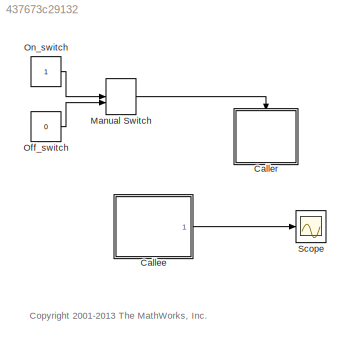
MODEL slx_437673c29132
KIND model
CONFIG AbsTol = auto
CONFIG EnableMultiTasking = on
CONFIG FixedStep = auto
CONFIG MaxStep = auto
CONFIG MinStep = auto
CONFIG RelTol = 1e-3
CONFIG SampleTimeConstraint = Unconstrained
CONFIG Solver = ode45
CONFIG SolverName = ode45
CONFIG StartTime = 0.0
CONFIG StopTime = inf
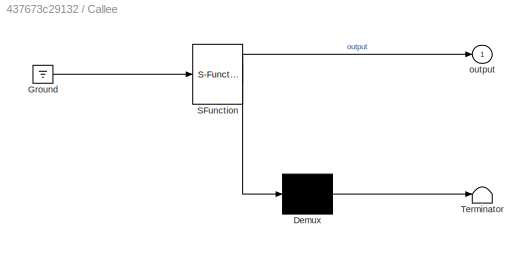
BLOCK [SubSystem] Callee
  ErrorFcn = Stateflow.Translate.translate
  PermitHierarchicalResolution = ExplicitOnly
  Ports = [0, 1]
  RequestExecContextInheritance = off
  SFBlockType = Chart
  TreatAsAtomicUnit = on
  Variant = off
BLOCK [Demux] Callee/ Demux 
  Outputs = 1
  Ports = [1, 1]
BLOCK [Ground] Callee/ Ground 
BLOCK [S-Function] Callee/ SFunction 
  EnableBusSupport = off
  FunctionName = sf_sfun
  PortCounts = [1 2]
  Ports = [1, 2]
  SFcnIsStateOwnerBlock = off
  SFunctionDeploymentMode = off
  Tag = Stateflow S-Function sf_gfexport 2
BLOCK [Terminator] Callee/ Terminator 
BLOCK [Outport] Callee/output
  IconDisplay = Port number
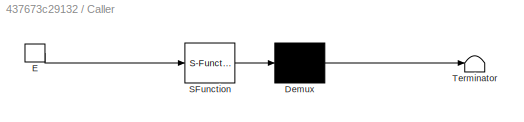
BLOCK [SubSystem] Caller
  ErrorFcn = Stateflow.Translate.translate
  PermitHierarchicalResolution = ExplicitOnly
  Ports = [0, 0, 0, 1]
  RequestExecContextInheritance = off
  SFBlockType = Chart
  TreatAsAtomicUnit = on
  Variant = off
BLOCK [Demux] Caller/ Demux 
  Outputs = 1
  Ports = [1, 1]
BLOCK [S-Function] Caller/ SFunction 
  EnableBusSupport = off
  FunctionName = sf_sfun
  PortCounts = [1 1]
  Ports = [1, 1]
  SFcnIsStateOwnerBlock = off
  SFunctionDeploymentMode = off
  Tag = Stateflow S-Function sf_gfexport 1
BLOCK [Terminator] Caller/ Terminator 
BLOCK [TriggerPort] Caller/E
  Ports = [0, 1]
  ShowOutputPort = on
  TriggerType = either
  VariantControl = Variant
BLOCK [ManualSwitch] Manual Switch
  CurrentSetting = 0
BLOCK [Constant] Off_switch
  Value = 0
BLOCK [Constant] On_switch
BLOCK [Scope] Scope
  NumInputPorts = 1
  Ports = [1]
  ScopeSpecificationString = Simulink.scopes.TimeScopeBlockCfg('CurrentConfiguration', extmgr.ConfigurationSet(extmgr.Configuration('Core','General UI',true),extmgr.Configuration('Core','Source UI',true),extmgr.Configuration('Sources','WiredSimulink',true,'DataLoggingSaveFormat','StructureWithTime'),extmgr.Configuration('Visuals','Time Domain',true,'SerializedDisplays',{struct('MinYLimReal','-1','MaxYLimReal','1.3','YLabelRea...<+1706ch>
ANNOTATION (root): <copyright redacted>
LINE Callee:1 -> Scope:1
LINE Manual Switch:1 -> Caller:trigger
LINE Off_switch:1 -> Manual Switch:2
LINE On_switch:1 -> Manual Switch:1
CHART Caller states=0 transitions=3
CHART Callee states=5 transitions=6
  STATE_LABEL 'B\nentry: output = 1;'
  STATE_LABEL 'A\nentry: output = 0;'
  STATE_LABEL 'send_event_to_A()'
  STATE_LABEL '{send(SWITCH,A);}'
  STATE_LABEL 'activity = is_A_active()'
  STATE_LABEL '{activity = in(A);}'
  STATE_LABEL 'send_event_to_B()'
  STATE_LABEL '{send(SWITCH,B);}'
